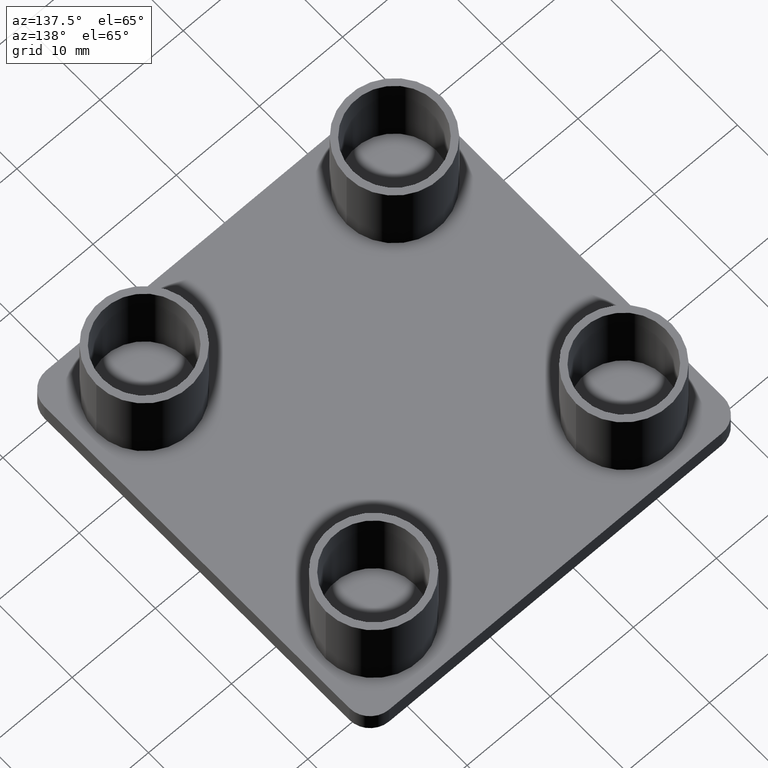
[diagram: clean part render]
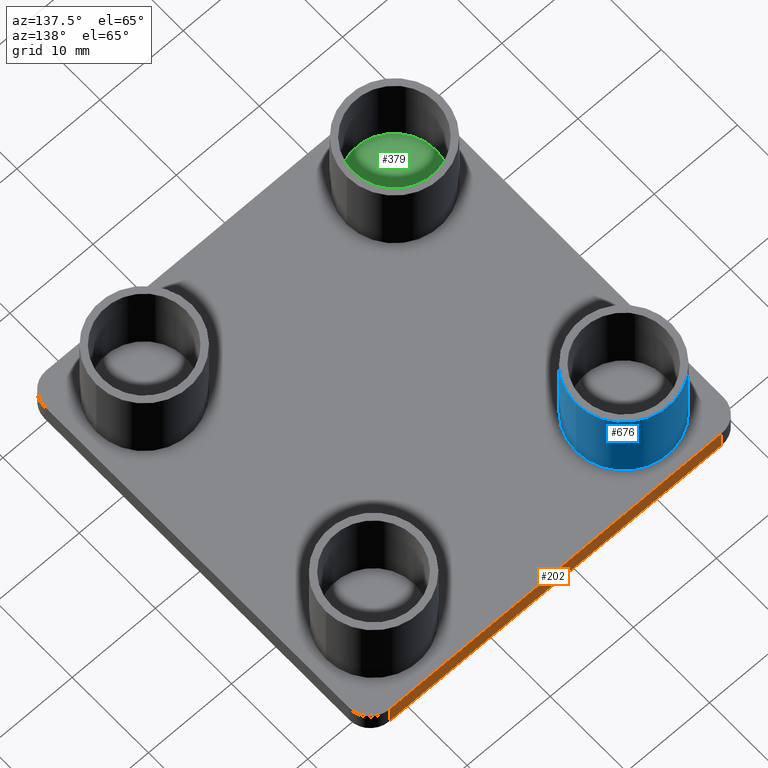
[diagram: same view with three faces highlighted in distinct colors, each labeled with its STEP entity id]
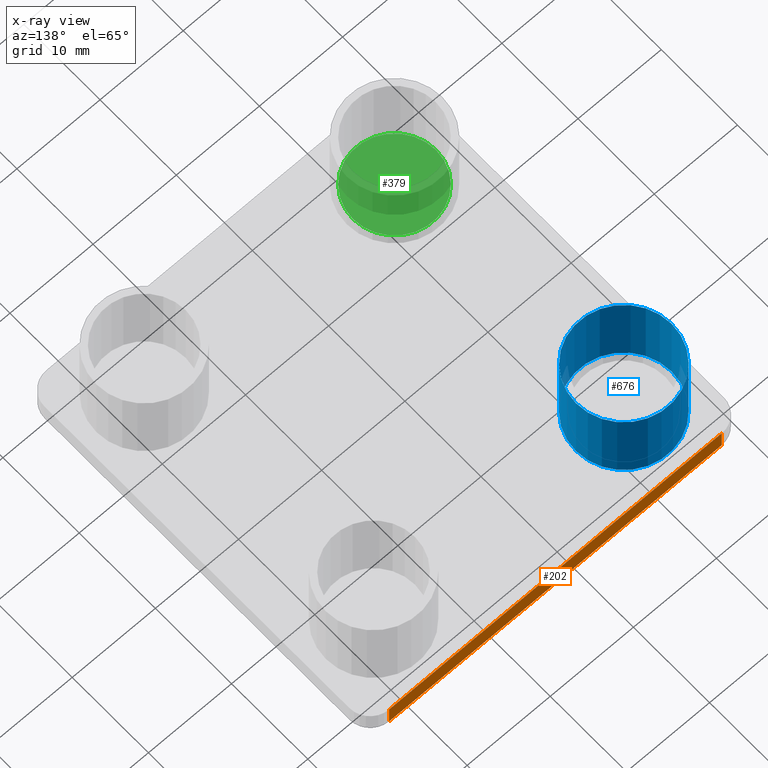
[diagram: x-ray of the same camera — body ghosted, the three highlighted faces saturated]
A machine part, auxiliary view with three faces highlighted in distinct colors.
The next image is the same camera in x-ray (body ghosted, the three faces saturated) — at least one of them is partly hidden behind the body in this view.
Their STEP definitions:

[orange] entity #202 — the highlighted planar face has unit normal (0, -1, 0).
#145=CARTESIAN_POINT('',(42.499955499829866,22.499977499910074,-2.500000000000000));
#146=VERTEX_POINT('',#145);
#154=CARTESIAN_POINT('',(42.499955499829866,22.499977499910074,0.0));
#155=VERTEX_POINT('',#154);
#156=CARTESIAN_POINT('',(42.499955499829866,22.499977499910074,0.0));
#157=DIRECTION('',(0.0,0.0,-1.0));
#158=VECTOR('',#157,2.500000000000000);
#159=LINE('',#156,#158);
#160=EDGE_CURVE('',#155,#146,#159,.T.);
#172=CARTESIAN_POINT('',(42.499955499829866,22.499977499910074,0.0));
#173=DIRECTION('',(0.0,-1.0,0.0));
#174=DIRECTION('',(-1.0,0.0,0.0));
#175=AXIS2_PLACEMENT_3D('',#172,#173,#174);
#176=PLANE('',#175);
#177=ORIENTED_EDGE('',*,*,#160,.T.);
#178=CARTESIAN_POINT('',(2.499999499989826,22.499977499910074,-2.500000000000000));
#179=VERTEX_POINT('',#178);
#180=CARTESIAN_POINT('',(42.499955499829866,22.499977499910074,-2.500000000000000));
#181=DIRECTION('',(-1.0,0.0,0.0));
#182=VECTOR('',#181,39.999955999840019);
#183=LINE('',#180,#182);
#184=EDGE_CURVE('',#146,#179,#183,.T.);
#185=ORIENTED_EDGE('',*,*,#184,.T.);
#186=CARTESIAN_POINT('',(2.499999499989826,22.499977499910074,0.0));
#187=VERTEX_POINT('',#186);
#188=CARTESIAN_POINT('',(2.499999499989826,22.499977499910074,0.0));
#189=DIRECTION('',(0.0,0.0,-1.0));
#190=VECTOR('',#189,2.500000000000000);
#191=LINE('',#188,#190);
#192=EDGE_CURVE('',#187,#179,#191,.T.);
#193=ORIENTED_EDGE('',*,*,#192,.F.);
#194=CARTESIAN_POINT('',(42.499955499829866,22.499977499910074,0.0));
#195=DIRECTION('',(-1.0,0.0,0.0));
#196=VECTOR('',#195,39.999955999840019);
#197=LINE('',#194,#196);
#198=EDGE_CURVE('',#155,#187,#197,.T.);
#199=ORIENTED_EDGE('',*,*,#198,.F.);
#200=EDGE_LOOP('',(#177,#185,#193,#199));
#201=FACE_OUTER_BOUND('',#200,.T.);
#202=ADVANCED_FACE('',(#201),#176,.F.);

[blue] entity #676 — the highlighted cylindrical surface (bore or boss wall) has radius 5.75 mm, axis along (0, 0, 1).
#313=CARTESIAN_POINT('',(1.699955499992746,15.050022499939587,0.0));
#314=VERTEX_POINT('',#313);
#315=CARTESIAN_POINT('',(13.199955499946554,15.050022499939587,0.0));
#316=VERTEX_POINT('',#315);
#317=CARTESIAN_POINT('',(7.449955499969747,15.050022499939587,0.0));
#318=DIRECTION('',(0.0,0.0,1.0));
#319=DIRECTION('',(1.0,0.0,0.0));
#320=AXIS2_PLACEMENT_3D('',#317,#318,#319);
#321=CIRCLE('',#320,5.749999999977001);
#322=EDGE_CURVE('',#314,#316,#321,.T.);
#324=CARTESIAN_POINT('',(7.449955499969747,15.050022499939587,0.0));
#325=DIRECTION('',(0.0,0.0,1.0));
#326=DIRECTION('',(1.0,0.0,0.0));
#327=AXIS2_PLACEMENT_3D('',#324,#325,#326);
#328=CIRCLE('',#327,5.749999999977001);
#329=EDGE_CURVE('',#316,#314,#328,.T.);
#642=CARTESIAN_POINT('',(7.449955499969747,15.050022499939587,0.0));
#643=DIRECTION('',(0.0,0.0,1.0));
#644=DIRECTION('',(1.0,0.0,0.0));
#645=AXIS2_PLACEMENT_3D('',#642,#643,#644);
#646=CYLINDRICAL_SURFACE('',#645,5.749999999977001);
#647=CARTESIAN_POINT('',(1.699955499992746,15.050022499939587,10.0));
#648=VERTEX_POINT('',#647);
#649=CARTESIAN_POINT('',(13.199955499946554,15.050022499939587,10.0));
#650=VERTEX_POINT('',#649);
#651=CARTESIAN_POINT('',(7.449955499969747,15.050022499939587,10.0));
#652=DIRECTION('',(0.0,0.0,1.0));
#653=DIRECTION('',(1.0,0.0,0.0));
#654=AXIS2_PLACEMENT_3D('',#651,#652,#653);
#655=CIRCLE('',#654,5.749999999977001);
#656=EDGE_CURVE('',#648,#650,#655,.T.);
#657=ORIENTED_EDGE('',*,*,#656,.F.);
#658=CARTESIAN_POINT('',(7.449955499969747,15.050022499939587,10.0));
#659=DIRECTION('',(0.0,0.0,1.0));
#660=DIRECTION('',(1.0,0.0,0.0));
#661=AXIS2_PLACEMENT_3D('',#658,#659,#660);
#662=CIRCLE('',#661,5.749999999977001);
#663=EDGE_CURVE('',#650,#648,#662,.T.);
#664=ORIENTED_EDGE('',*,*,#663,.F.);
#665=CARTESIAN_POINT('',(13.199955499946554,15.050022499939587,0.0));
#666=DIRECTION('',(0.0,0.0,1.0));
#667=VECTOR('',#666,10.0);
#668=LINE('',#665,#667);
#669=EDGE_CURVE('',#316,#650,#668,.T.);
#670=ORIENTED_EDGE('',*,*,#669,.F.);
#671=ORIENTED_EDGE('',*,*,#329,.T.);
#672=ORIENTED_EDGE('',*,*,#322,.T.);
#673=ORIENTED_EDGE('',*,*,#669,.T.);
#674=EDGE_LOOP('',(#657,#664,#670,#671,#672,#673));
#675=FACE_OUTER_BOUND('',#674,.T.);
#676=ADVANCED_FACE('',(#675),#646,.T.);

[green] entity #379 — the highlighted planar face has unit normal (0, 0, 1).
#354=CARTESIAN_POINT('',(-4.500000833933882,-26.999978833734076,0.0));
#355=DIRECTION('',(0.0,0.0,1.0));
#356=DIRECTION('',(1.0,0.0,0.0));
#357=AXIS2_PLACEMENT_3D('',#354,#355,#356);
#358=PLANE('',#357);
#359=CARTESIAN_POINT('',(2.449955499989746,-15.050022499940042,0.0));
#360=VERTEX_POINT('',#359);
#361=CARTESIAN_POINT('',(12.449955499949738,-15.050022499940042,0.0));
#362=VERTEX_POINT('',#361);
#363=CARTESIAN_POINT('',(7.449955499969747,-15.050022499940042,0.0));
#364=DIRECTION('',(0.0,0.0,-1.0));
#365=DIRECTION('',(1.0,0.0,0.0));
#366=AXIS2_PLACEMENT_3D('',#363,#364,#365);
#367=CIRCLE('',#366,4.999999999980001);
#368=EDGE_CURVE('',#360,#362,#367,.T.);
#369=ORIENTED_EDGE('',*,*,#368,.F.);
#370=CARTESIAN_POINT('',(7.449955499969747,-15.050022499940042,0.0));
#371=DIRECTION('',(0.0,0.0,-1.0));
#372=DIRECTION('',(1.0,0.0,0.0));
#373=AXIS2_PLACEMENT_3D('',#370,#371,#372);
#374=CIRCLE('',#373,4.999999999980001);
#375=EDGE_CURVE('',#362,#360,#374,.T.);
#376=ORIENTED_EDGE('',*,*,#375,.F.);
#377=EDGE_LOOP('',(#369,#376));
#378=FACE_OUTER_BOUND('',#377,.T.);
#379=ADVANCED_FACE('',(#378),#358,.T.);